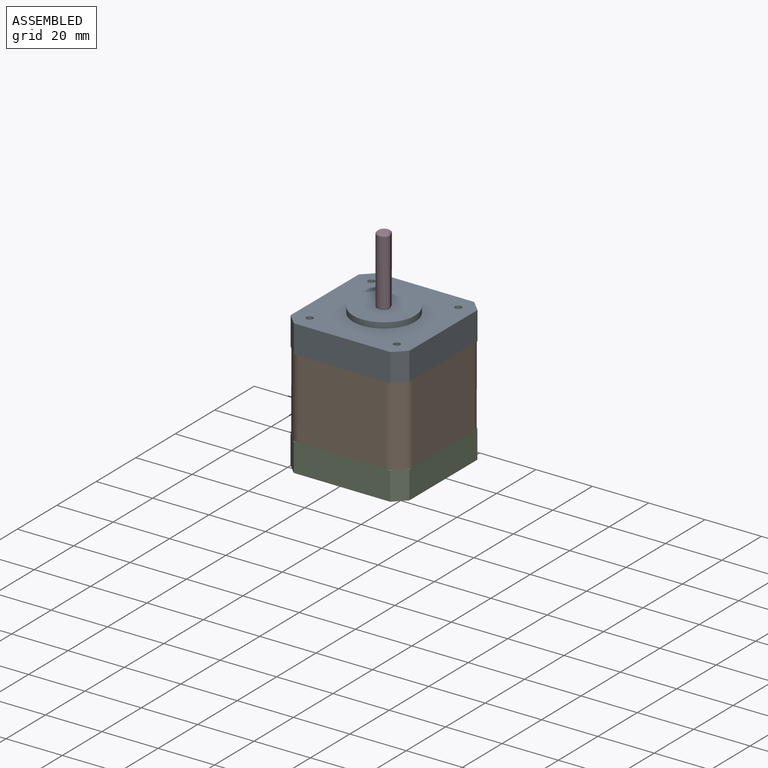
[diagram: assembled view]
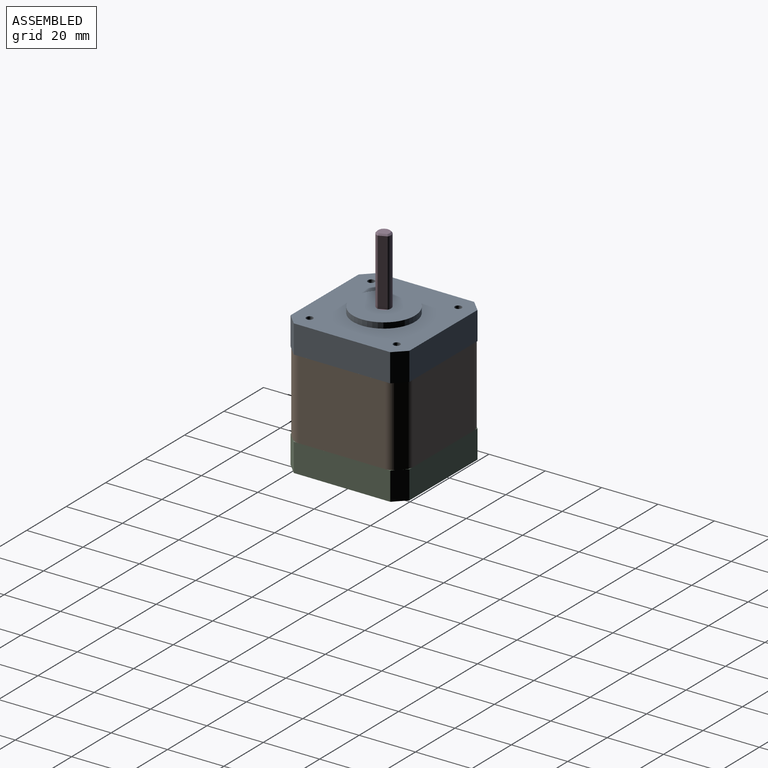
[diagram: assembled view, second angle]
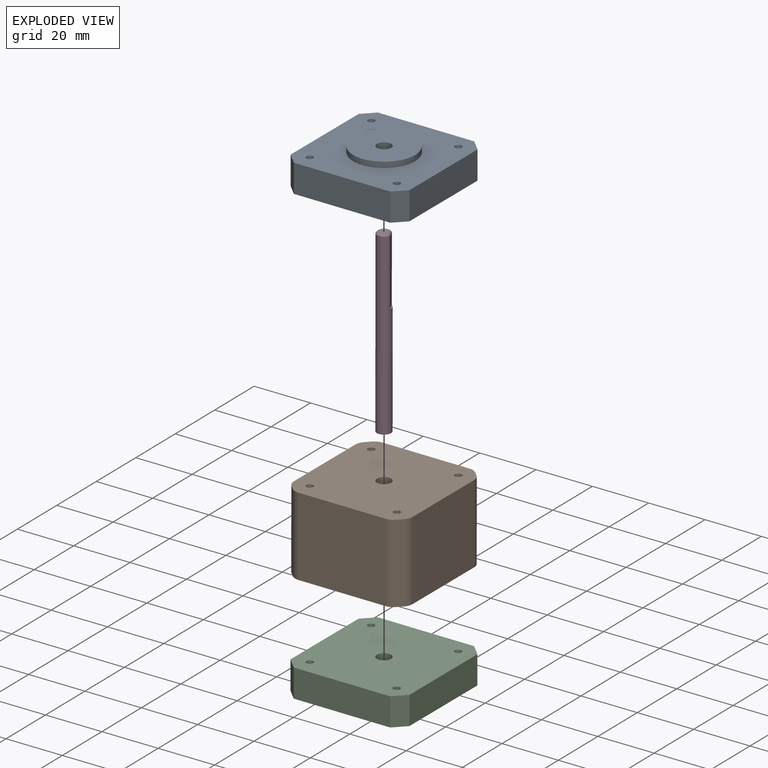
[diagram: exploded view]
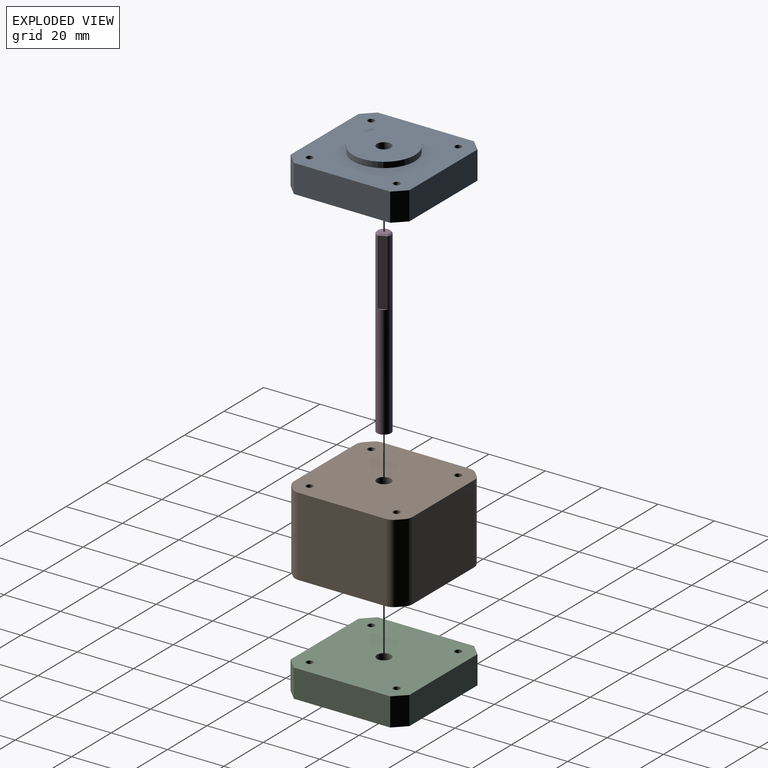
[diagram: exploded view, second angle]
ASSEMBLY  parts=4 mates=3
PART A: 17 faces, bbox 42.3x42.3x12 mm
  f0: plane 34.3x10mm, normal (-1,0,0), area 343mm2, adj f4,f5,f9,f10
  f1: plane 34.3x10mm, normal (0,-1,0), area 343mm2, adj f4,f5,f9,f12
  f2: plane 34.3x10mm, normal (1,0,0), area 343mm2, adj f4,f5,f11,f12
  f3: plane 34.3x10mm, normal (0,1,0), area 343mm2, adj f4,f5,f10,f11
  f4: plane 42.3x42.3mm, normal (0,0,-1), area 1719.6mm2, adj f0,f1,f2,f3,f6,f9,f10,f11
  f5: plane 42.3x42.3mm, normal (0,0,1), area 1359.1mm2, adj f0,f1,f2,f3,f7,f9,f10,f11
  f6: cylinder r=2.5mm len=12mm, axis (0,0,-1), area 188.5mm2, adj f4,f8
  f7: cylinder r=11mm len=22mm, axis (0,0,-1), area 138.2mm2, adj f5,f8
  f8: plane 22x22mm, normal (0,0,1), area 360.5mm2, adj f6,f7
  f9: plane 10x4mm, normal (-0.71,-0.71,0), area 56.6mm2, adj f0,f1,f4,f5
  f10: plane 10x4mm, normal (-0.71,0.71,0), area 56.6mm2, adj f0,f3,f4,f5
  f11: plane 10x4mm, normal (0.71,0.71,0), area 56.6mm2, adj f2,f3,f4,f5
  f12: plane 10x4mm, normal (0.71,-0.71,0), area 56.6mm2, adj f1,f2,f4,f5
  f13: cylinder r=1.2mm len=10mm, axis (0,0,1), area 75.4mm2, adj f4,f5
  f14: cylinder r=1.2mm len=10mm, axis (0,0,1), area 75.4mm2, adj f4,f5
  f15: cylinder r=1.2mm len=10mm, axis (0,0,1), area 75.4mm2, adj f4,f5
  f16: cylinder r=1.2mm len=10mm, axis (0,0,1), area 75.4mm2, adj f4,f5
PART B: 23 faces, bbox 42.3x42.3x28 mm
  f0: plane 28x1.66mm, normal (-0.71,0.71,0), area 65.6mm2, adj f1,f15,f16,f17
  f1: cylinder r=4mm len=28mm, axis (0,0,1), area 88mm2, adj f0,f2,f16,f17
  f2: plane 30.99x28mm, normal (0,1,0), area 867.6mm2, adj f1,f3,f16,f17
  f3: cylinder r=4mm len=28mm, axis (0,0,1), area 88mm2, adj f2,f4,f16,f17
  f4: plane 28x1.66mm, normal (0.71,0.71,0), area 65.6mm2, adj f3,f5,f16,f17
  f5: cylinder r=4mm len=28mm, axis (0,0,1), area 88mm2, adj f4,f6,f16,f17
  f6: plane 30.99x28mm, normal (1,0,0), area 867.6mm2, adj f5,f7,f16,f17
  f7: cylinder r=4mm len=28mm, axis (0,0,1), area 88mm2, adj f6,f8,f16,f17
  f8: plane 28x1.66mm, normal (0.71,-0.71,0), area 65.6mm2, adj f7,f9,f16,f17
  f9: cylinder r=4mm len=28mm, axis (0,0,1), area 88mm2, adj f8,f10,f16,f17
  f10: plane 30.99x28mm, normal (0,-1,0), area 867.6mm2, adj f9,f11,f16,f17
  f11: cylinder r=4mm len=28mm, axis (0,0,1), area 88mm2, adj f10,f12,f16,f17
  f12: plane 28x1.66mm, normal (-0.71,-0.71,0), area 65.6mm2, adj f11,f13,f16,f17
  f13: cylinder r=4mm len=28mm, axis (0,0,1), area 88mm2, adj f12,f14,f16,f17
  f14: plane 30.99x28mm, normal (-1,0,0), area 867.6mm2, adj f13,f15,f16,f17
  f15: cylinder r=4mm len=28mm, axis (0,0,1), area 88mm2, adj f0,f14,f16,f17
  f16: plane 42.3x42.3mm, normal (0,0,-1), area 1716.8mm2, adj f0,f1,f2,f3,f4,f5,f6,f7
  f17: plane 42.3x42.3mm, normal (0,0,1), area 1716.8mm2, adj f0,f1,f2,f3,f4,f5,f6,f7
  f18: cylinder r=2.5mm len=28mm, axis (0,0,-1), area 439.8mm2, adj f16,f17
  f19: cylinder r=1.2mm len=28mm, axis (0,0,1), area 211.1mm2, adj f16,f17
  f20: cylinder r=1.2mm len=28mm, axis (0,0,1), area 211.1mm2, adj f16,f17
  f21: cylinder r=1.2mm len=28mm, axis (0,0,1), area 211.1mm2, adj f16,f17
  f22: cylinder r=1.2mm len=28mm, axis (0,0,1), area 211.1mm2, adj f16,f17
PART C: 16 faces, bbox 42.3x42.3x10 mm
  f0: plane 34.3x10mm, normal (-1,0,0), area 343mm2, adj f4,f5,f6,f8
  f1: plane 34.3x10mm, normal (0,1,0), area 343mm2, adj f4,f5,f8,f9
  f2: plane 34.3x10mm, normal (1,0,0), area 343mm2, adj f4,f5,f7,f9
  f3: plane 34.3x10mm, normal (0,-1,0), area 343mm2, adj f4,f5,f6,f7
  f4: plane 42.3x42.3mm, normal (0,0,-1), area 1710.9mm2, adj f0,f1,f2,f3,f6,f7,f8,f9
  f5: plane 42.3x42.3mm, normal (0,0,1), area 1719.6mm2, adj f0,f1,f2,f3,f6,f7,f8,f9
  f6: plane 10x4mm, normal (-0.71,-0.71,0), area 56.6mm2, adj f0,f3,f4,f5
  f7: plane 10x4mm, normal (0.71,-0.71,0), area 56.6mm2, adj f2,f3,f4,f5
  f8: plane 10x4mm, normal (-0.71,0.71,0), area 56.6mm2, adj f0,f1,f4,f5
  f9: plane 10x4mm, normal (0.71,0.71,0), area 56.6mm2, adj f1,f2,f4,f5
  f10: cylinder r=2.5mm len=9.5mm, axis (0,0,-1), area 149.2mm2, adj f5,f11
  f11: torus R=3mm, axis (0,0,-1), area 13.2mm2, adj f4,f10
  f12: cylinder r=1.2mm len=10mm, axis (0,0,1), area 75.4mm2, adj f4,f5
  f13: cylinder r=1.2mm len=10mm, axis (0,0,1), area 75.4mm2, adj f4,f5
  f14: cylinder r=1.2mm len=10mm, axis (0,0,1), area 75.4mm2, adj f4,f5
  f15: cylinder r=1.2mm len=10mm, axis (0,0,1), area 75.4mm2, adj f4,f5
PART D: 7 faces, bbox 5x5x64 mm
  f0: cylinder r=2.5mm len=63.5mm, axis (0,0,-1), area 921.8mm2, adj f2,f3,f4,f6
  f1: plane 4x3.5mm, normal (0,0,1), area 11.7mm2, adj f5,f6
  f2: plane 5x5mm, normal (0,0,-1), area 19.6mm2, adj f0
  f3: plane 23.5x3mm, normal (-1,0,0), area 70.5mm2, adj f0,f4,f5
  f4: plane 3x0.5mm, normal (0,0,1), area 1mm2, adj f0,f3
  f5: plane 3.02x0.52mm, normal (-0.71,0,0.71), area 2mm2, adj f1,f3,f6
  f6: cone r=2mm half-angle=45deg, axis (0,0,-1), area 7.8mm2, adj f0,f1,f5
PLACE A rot(axis=(0,0,1),179.8deg) t=(-39.61,-4.84,-10.86)mm
PLACE B rot(axis=(0,0,1),179.8deg) t=(-39.61,-4.84,-10.86)mm
PLACE C rot(axis=(0,0,1),179.8deg) t=(-39.61,-4.84,-10.86)mm
PLACE D rot(axis=(0,0,-1),155.7deg) t=(-47.62,-20.27,-10.85)mm
MATE fastened B.f18 <-> A.f6  axis (0,0,1) through (-8.22,-30.92,-20.87)mm
MATE fastened C.f10 <-> B.f18  axis (0,0,1) through (-8.24,-30.93,-48.87)mm
MATE revolute D.f0 <-> B.f18  axis (0,0,-1) through (-8.24,-30.93,-48.87)mm
